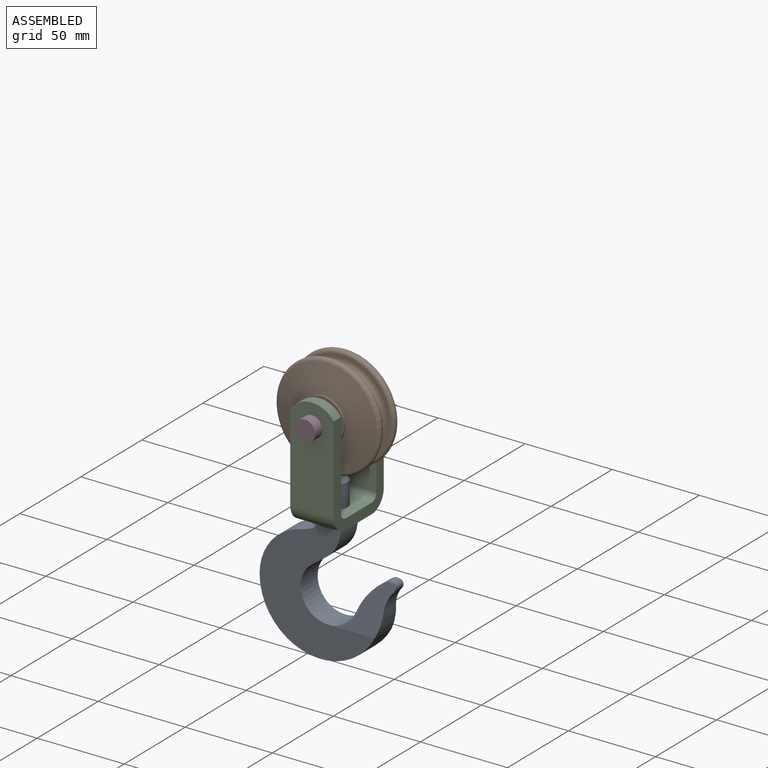
[diagram: assembled view]
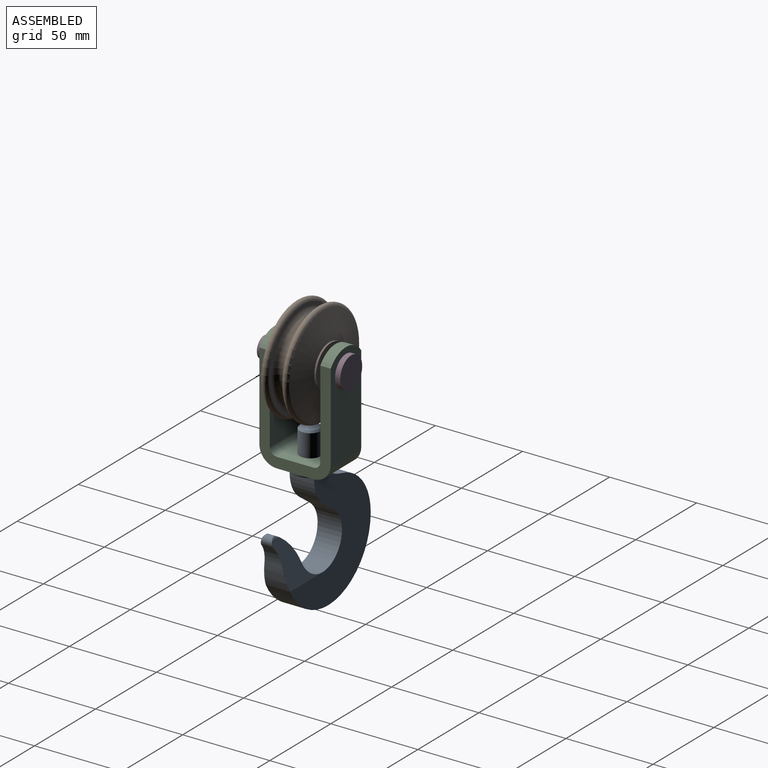
[diagram: assembled view, second angle]
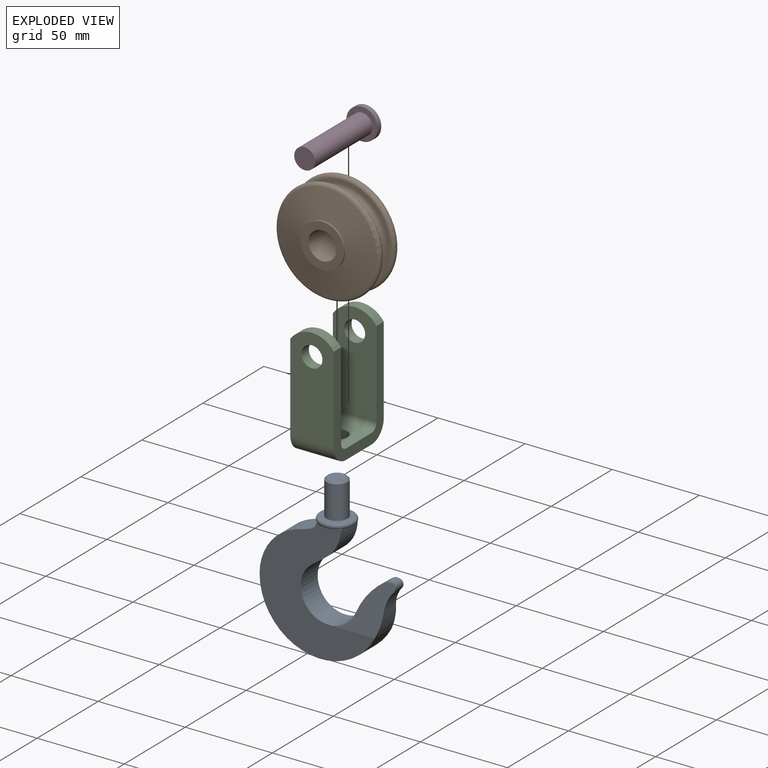
[diagram: exploded view]
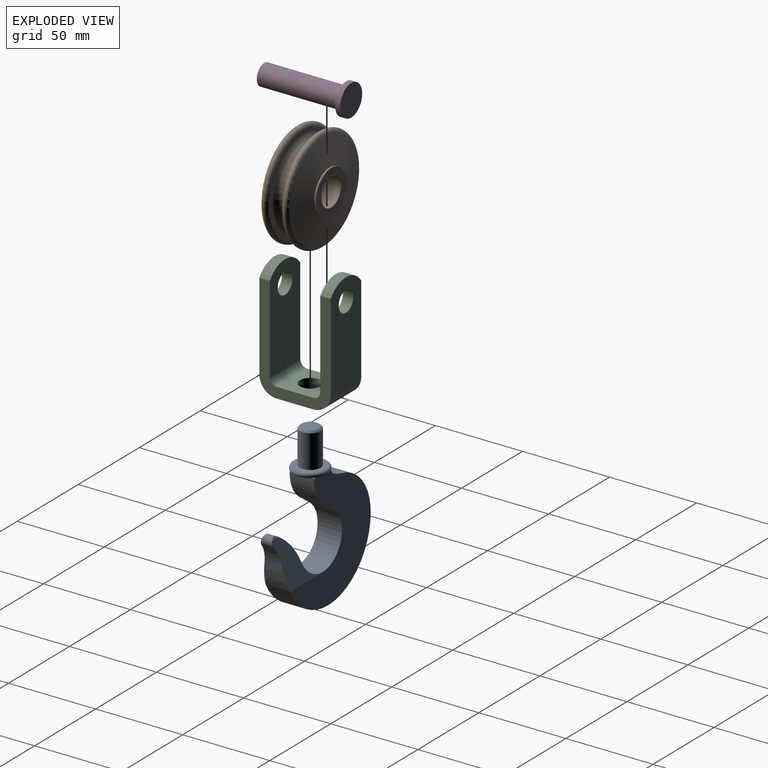
[diagram: exploded view, second angle]
ASSEMBLY  parts=4 mates=3
PART A: 28 faces, bbox 76.2x22.3x93.5 mm
  f0: cylinder r=3mm len=6.89mm, axis (0,1,0), area 50mm2, adj f1,f17,f24,f25,f26,f27
  f1: cylinder r=38mm len=19.34mm, axis (0,1,0), area 213.5mm2, adj f0,f18,f24,f25,f26,f27
  f2: plane 9.64x1.5mm, normal (0,0,-1), area 9.8mm2, adj f8,f21
  f3: plane 9.64x1.5mm, normal (0,0,-1), area 9.8mm2, adj f8,f22
  f4: plane 9.64x1.5mm, normal (0,0,-1), area 9.8mm2, adj f8,f23
  f5: cylinder r=6mm len=19mm, axis (0,0,-1), area 716.3mm2, adj f9,f10
  f6: plane 10x10mm, normal (0,0,1), area 78.5mm2, adj f10
  f7: plane 9.64x1.5mm, normal (0,0,-1), area 9.8mm2, adj f8,f20
  f8: torus R=8.5mm, axis (0,0,-1), area 279.9mm2, adj f2,f3,f4,f7,f9,f11,f12,f13
  f9: plane 17x17mm, normal (0,0,1), area 113.9mm2, adj f5,f8
  f10: cone r=5mm half-angle=45deg, axis (0,0,-1), area 48.9mm2, adj f5,f6
  f11: plane 2.18x2.18mm, normal (0,0,1), area 2.1mm2, adj f8,f21,f23
  f12: plane 2.18x2.18mm, normal (0,0,1), area 2.1mm2, adj f8,f20,f23
  f13: plane 2.18x2.18mm, normal (0,0,1), area 2.1mm2, adj f8,f20,f22
  f14: plane 2.18x2.18mm, normal (0,0,1), area 2.1mm2, adj f8,f21,f22
  f15: cylinder r=30mm len=29.56mm, axis (0,1,0), area 581.8mm2, adj f16,f21,f22,f23
  f16: cylinder r=35mm len=69.97mm, axis (0,1,0), area 1486.3mm2, adj f15,f17,f22,f23,f24,f27
  f17: cylinder r=19mm len=10.27mm, axis (0,1,0), area 96.1mm2, adj f0,f16,f24,f27
  f18: cylinder r=16mm len=30.94mm, axis (0,1,0), area 806mm2, adj f1,f19,f22,f23,f24,f27
  f19: plane 14x8.03mm, normal (0.58,0,-0.81), area 138.6mm2, adj f18,f20,f22,f23
  f20: cylinder r=20mm len=16.23mm, axis (0,1,0), area 265.1mm2, adj f7,f12,f13,f19,f22,f23
  f21: extruded ~14x8.17mm, area 146.6mm2, adj f2,f11,f14,f15,f22,f23
  f22: plane 69.9x66.08mm, normal (0,-1,0), area 2150.4mm2, adj f3,f13,f14,f15,f16,f18,f19,f20
  f23: plane 69.9x66.08mm, normal (0,1,0), area 2150.4mm2, adj f4,f11,f12,f15,f16,f18,f19,f20
  f24: plane 36.34x28.64mm, normal (0,0.99,0.14), area 395.6mm2, adj f0,f1,f16,f17,f18,f23,f25
  f25: cylinder r=3mm len=6.88mm, axis (1,0,0), area 9.6mm2, adj f0,f1,f24
  f26: cylinder r=3mm len=6.06mm, axis (1,0,0), area 6.8mm2, adj f0,f1,f27
  f27: plane 36.34x29.06mm, normal (0,-0.99,0.14), area 398.4mm2, adj f0,f1,f16,f17,f18,f22,f26
PART B: 12 faces, bbox 24x64.9x64.9 mm
  f0: cylinder r=8mm len=24mm, axis (-1,0,0), area 1206.4mm2, adj f1,f11
  f1: plane 25x25mm, normal (1,0,0), area 289.8mm2, adj f0,f2
  f2: cylinder r=12.5mm len=25mm, axis (-1,0,0), area 78.5mm2, adj f1,f3
  f3: cone r=12.5mm half-angle=79.2deg, axis (-1,0,0), area 2075.6mm2, adj f2,f4
  f4: torus R=28mm, axis (-1,0,0), area 1088.7mm2, adj f3,f5
  f5: plane 56x56mm, normal (-1,0,0), area 339.3mm2, adj f4,f6
  f6: torus R=26mm, axis (-1,0,0), area 1851.8mm2, adj f5,f7
  f7: plane 56x56mm, normal (1,0,0), area 339.3mm2, adj f6,f8
  f8: torus R=28mm, axis (-1,0,0), area 1088.7mm2, adj f7,f9
  f9: cone r=12.5mm half-angle=79.2deg, axis (1,0,0), area 2075.6mm2, adj f8,f10
  f10: cylinder r=12.5mm len=25mm, axis (-1,0,0), area 78.5mm2, adj f9,f11
  f11: plane 25x25mm, normal (-1,0,0), area 289.8mm2, adj f0,f10
PART C: 17 faces, bbox 41x25x66.5 mm
  f0: plane 60x41mm, normal (0,1,0), area 857.9mm2, adj f1,f3,f4,f5,f6,f7,f8,f9
  f1: cylinder r=15.27mm len=25mm, axis (-1,0,0), area 175.7mm2, adj f0,f2,f6,f8
  f2: plane 60x41mm, normal (0,-1,0), area 857.9mm2, adj f1,f3,f4,f5,f6,f7,f8,f9
  f3: plane 25x21mm, normal (0,0,-1), area 411.9mm2, adj f0,f2,f10,f11,f14
  f4: cylinder r=15.27mm len=25mm, axis (-1,0,0), area 175.7mm2, adj f0,f2,f5,f9
  f5: plane 56.5x25mm, normal (1,0,0), area 1250.9mm2, adj f0,f2,f4,f11,f15
  f6: plane 56.5x25mm, normal (-1,0,0), area 1250.9mm2, adj f0,f1,f2,f10,f16
  f7: plane 25x21mm, normal (0,0,1), area 411.9mm2, adj f0,f2,f12,f13,f14
  f8: plane 56.5x25mm, normal (1,0,0), area 1250.9mm2, adj f0,f1,f2,f12,f16
  f9: plane 56.5x25mm, normal (-1,0,0), area 1250.9mm2, adj f0,f2,f4,f13,f15
  f10: cylinder r=10mm len=25mm, axis (0,1,0), area 392.7mm2, adj f0,f2,f3,f6
  f11: cylinder r=10mm len=25mm, axis (0,-1,0), area 392.7mm2, adj f0,f2,f3,f5
  f12: cylinder r=4mm len=25mm, axis (0,-1,0), area 157.1mm2, adj f0,f2,f7,f8
  f13: cylinder r=4mm len=25mm, axis (0,1,0), area 157.1mm2, adj f0,f2,f7,f9
  f14: cylinder r=6mm len=12mm, axis (0,0,1), area 226.2mm2, adj f3,f7
  f15: cylinder r=6mm len=12mm, axis (1,0,0), area 226.2mm2, adj f5,f9
  f16: cylinder r=6mm len=12mm, axis (1,0,0), area 226.2mm2, adj f6,f8
PART D: 5 faces, bbox 50x18x18 mm
  f0: plane 12x12mm, normal (-1,0,0), area 113.1mm2, adj f4
  f1: plane 18x18mm, normal (1,0,0), area 254.5mm2, adj f2
  f2: cylinder r=9mm len=18mm, axis (-1,0,0), area 169.6mm2, adj f1,f3
  f3: plane 18x18mm, normal (-1,0,0), area 141.4mm2, adj f2,f4
  f4: cylinder r=6mm len=47mm, axis (-1,0,0), area 1771.9mm2, adj f0,f3
PLACE A t=(-0.11,3.18,4.87)mm
PLACE B rot(axis=(0,0,1),90deg) t=(-0.11,3.18,58.87)mm
PLACE C rot(axis=(0,0,-1),90deg) t=(-0.11,3.18,38.12)mm
PLACE D rot(axis=(0,0,1),90deg) t=(-0.11,-23.32,58.87)mm
MATE slider D.f2 <-> C.f15  axis (0,-1,0) through (-0.11,23.68,58.87)mm
MATE fastened B.f0 <-> C.f15  axis (0,1,0) through (-0.11,15.18,58.87)mm
MATE fastened C.f14 <-> A.f5  axis (0,0,-1) through (-0.11,3.18,4.87)mm
